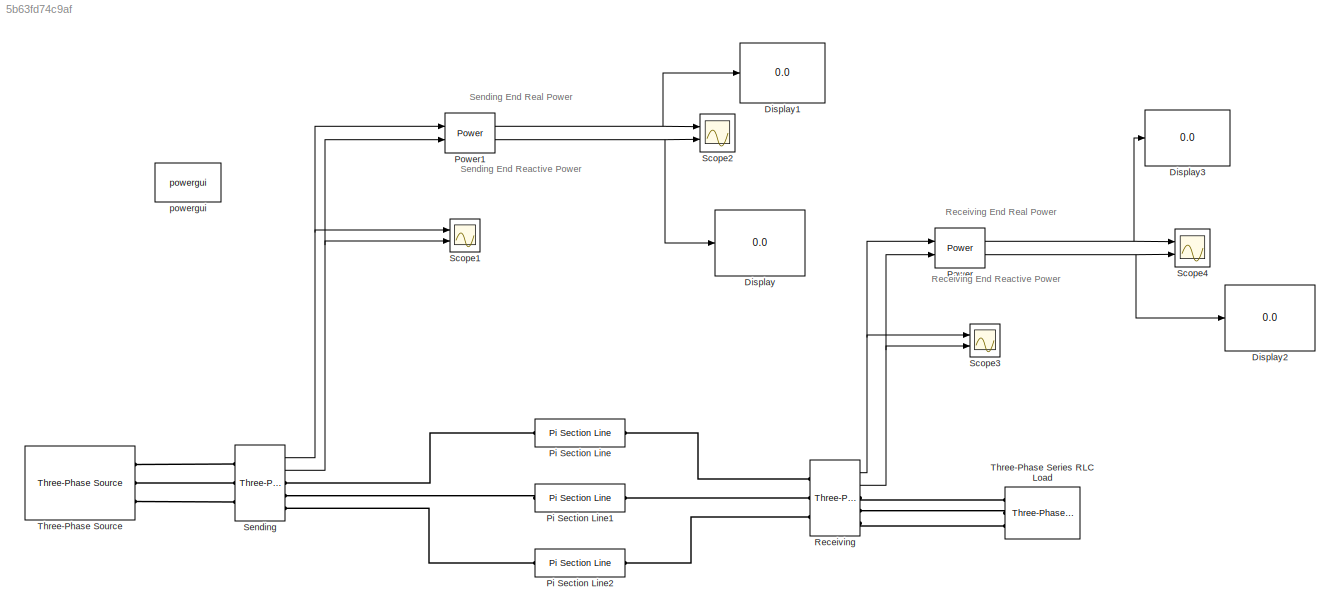
MODEL slx_5b63fd74c9af
KIND model
CONFIG AbsTol = auto
CONFIG EnableMultiTasking = off
CONFIG FixedStep = auto
CONFIG MaxStep = auto
CONFIG MinStep = auto
CONFIG RelTol = 1e-3
CONFIG SampleTimeConstraint = Unconstrained
CONFIG Solver = ode23tb
CONFIG SolverName = ode23tb
CONFIG StartTime = 0.0
CONFIG StopTime = 1
BLOCK [Display] Display
  Decimation = 1
  Ports = [1]
BLOCK [Display] Display1
  Decimation = 1
  Ports = [1]
BLOCK [Display] Display2
  Decimation = 1
  Ports = [1]
BLOCK [Display] Display3
  Decimation = 1
  Ports = [1]
BLOCK [Reference] Pi Section Line  REF=powerlib/Elements/Pi Section Line
  AttributesFormatString = \n
  Ports = [0, 0, 0, 0, 0, 1, 1]
  SourceBlock = powerlib/Elements/Pi Section Line
  SourceProductBaseCode = PS
  SourceProductName = Simscape Electrical
  SourceType = Pi Section Line
BLOCK [Reference] Pi Section Line1  REF=powerlib/Elements/Pi Section Line
  AttributesFormatString = \n
  Ports = [0, 0, 0, 0, 0, 1, 1]
  SourceBlock = powerlib/Elements/Pi Section Line
  SourceProductBaseCode = PS
  SourceProductName = Simscape Electrical
  SourceType = Pi Section Line
BLOCK [Reference] Pi Section Line2  REF=powerlib/Elements/Pi Section Line
  AttributesFormatString = \n
  Ports = [0, 0, 0, 0, 0, 1, 1]
  SourceBlock = powerlib/Elements/Pi Section Line
  SourceProductBaseCode = PS
  SourceProductName = Simscape Electrical
  SourceType = Pi Section Line
BLOCK [Reference] Power  REF=powerlib_meascontrol/Measurements/Power
  Ports = [2, 2]
  SourceBlock = powerlib_meascontrol/Measurements/Power
  SourceProductBaseCode = PS
  SourceProductName = Simscape Electrical
  SourceType = Power
BLOCK [Reference] Power1  REF=powerlib_meascontrol/Measurements/Power
  Ports = [2, 2]
  SourceBlock = powerlib_meascontrol/Measurements/Power
  SourceProductBaseCode = PS
  SourceProductName = Simscape Electrical
  SourceType = Power
BLOCK [Reference] Receiving  REF=powerlib/Measurements/Three-Phase
V-I Measurement
  Ports = [0, 2, 0, 0, 0, 3, 3]
  SourceBlock = powerlib/Measurements/Three-Phase\nV-I Measurement
  SourceProductBaseCode = PS
  SourceProductName = Simscape Electrical
  SourceType = Three-Phase VI Measurement
BLOCK [Scope] Scope1
  Floating = off
  NumInputPorts = 2
  Ports = [2]
  ScopeSpecificationString = Simulink.scopes.TimeScopeBlockCfg('CurrentConfiguration', extmgr.ConfigurationSet(extmgr.Configuration('Core','General UI',true),extmgr.Configuration('Core','Source UI',true),extmgr.Configuration('Sources','WiredSimulink',true),extmgr.Configuration('Visuals','Time Domain',true,'SerializedDisplays',{struct('MinYLimReal','-148756.94416','MaxYLimReal','148801.37545','YLabelReal','','MinYLimMag','    ...<+1488ch>
BLOCK [Scope] Scope2
  Floating = off
  NumInputPorts = 2
  Ports = [2]
  ScopeSpecificationString = Simulink.scopes.TimeScopeBlockCfg('CurrentConfiguration', extmgr.ConfigurationSet(extmgr.Configuration('Core','General UI',true),extmgr.Configuration('Core','Source UI',true),extmgr.Configuration('Sources','WiredSimulink',true,'DataLoggingVariableName','ScopeData1'),extmgr.Configuration('Visuals','Time Domain',true),extmgr.Configuration('Tools','Plot Navigation',true),extmgr.Configuration('Tools',...<+113ch>
BLOCK [Scope] Scope3
  Floating = off
  NumInputPorts = 2
  Ports = [2]
  ScopeSpecificationString = Simulink.scopes.TimeScopeBlockCfg('CurrentConfiguration', extmgr.ConfigurationSet(extmgr.Configuration('Core','General UI',true),extmgr.Configuration('Core','Source UI',true),extmgr.Configuration('Sources','WiredSimulink',true,'DataLoggingVariableName','ScopeData3'),extmgr.Configuration('Visuals','Time Domain',true),extmgr.Configuration('Tools','Plot Navigation',true),extmgr.Configuration('Tools',...<+113ch>
BLOCK [Scope] Scope4
  Floating = off
  NumInputPorts = 2
  Ports = [2]
  ScopeSpecificationString = Simulink.scopes.TimeScopeBlockCfg('CurrentConfiguration', extmgr.ConfigurationSet(extmgr.Configuration('Core','General UI',true),extmgr.Configuration('Core','Source UI',true),extmgr.Configuration('Sources','WiredSimulink',true,'DataLoggingVariableName','ScopeData2'),extmgr.Configuration('Visuals','Time Domain',true),extmgr.Configuration('Tools','Plot Navigation',true),extmgr.Configuration('Tools',...<+113ch>
BLOCK [Reference] Sending  REF=powerlib/Measurements/Three-Phase
V-I Measurement
  Ports = [0, 2, 0, 0, 0, 3, 3]
  SourceBlock = powerlib/Measurements/Three-Phase\nV-I Measurement
  SourceProductBaseCode = PS
  SourceProductName = Simscape Electrical
  SourceType = Three-Phase VI Measurement
BLOCK [Reference] Three-Phase Series RLC Load  REF=powerlib/Elements/Three-Phase
Series RLC Load
  AttributesFormatString = \n
  Ports = [0, 0, 0, 0, 0, 3]
  SourceBlock = powerlib/Elements/Three-Phase\nSeries RLC Load
  SourceProductBaseCode = PS
  SourceProductName = Simscape Electrical
  SourceType = Three-Phase Series RLC Load
BLOCK [Reference] Three-Phase Source  REF=powerlib/Electrical
Sources/Three-Phase Source
  Ports = [0, 0, 0, 0, 0, 0, 3]
  SourceBlock = powerlib/Electrical\nSources/Three-Phase Source
  SourceProductBaseCode = PS
  SourceProductName = Simscape Electrical
  SourceType = Three-Phase Source
BLOCK [Reference] powergui  REF=powerlib/powergui
  Ports = []
  Priority = 1
  SourceBlock = powerlib/powergui
  SourceProductBaseCode = PS
  SourceProductName = Simscape Electrical
  SourceType = PSB option menu block
ANNOTATION (root): Receiving End Reactive Power
ANNOTATION (root): Receiving End Real Power
ANNOTATION (root): Sending End Reactive Power
ANNOTATION (root): Sending End Real Power
NET Power1:1 -> Display1:1, Scope2:1
NET Power1:2 -> Display:1, Scope2:2
NET Power:1 -> Display3:1, Scope4:1
NET Power:2 -> Display2:1, Scope4:2
NET Receiving:1 -> Power:1, Scope3:1
NET Receiving:2 -> Power:2, Scope3:2
NET Sending:1 -> Power1:1, Scope1:1
NET Sending:2 -> Power1:2, Scope1:2
PLINE Pi Section Line1:LConn1 -- Sending:RConn2
PLINE Pi Section Line1:RConn1 -- Receiving:LConn2
PLINE Pi Section Line2:LConn1 -- Sending:RConn3
PLINE Pi Section Line2:RConn1 -- Receiving:LConn3
PLINE Pi Section Line:LConn1 -- Sending:RConn1
PLINE Pi Section Line:RConn1 -- Receiving:LConn1
PLINE Receiving:RConn1 -- Three-Phase Series RLC Load:LConn1
PLINE Receiving:RConn2 -- Three-Phase Series RLC Load:LConn2
PLINE Receiving:RConn3 -- Three-Phase Series RLC Load:LConn3
PLINE Sending:LConn1 -- Three-Phase Source:RConn1
PLINE Sending:LConn2 -- Three-Phase Source:RConn2
PLINE Sending:LConn3 -- Three-Phase Source:RConn3
note: NET lines group one-source signal fan-out (src -> all destinations, sorted); 1:1 wires keep LINE
